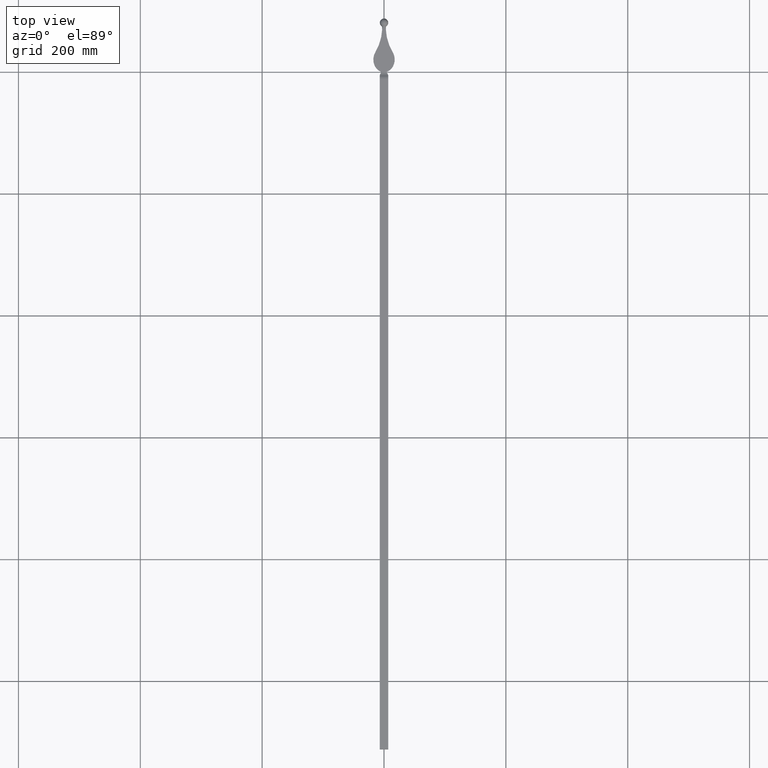
[diagram: clean part render]
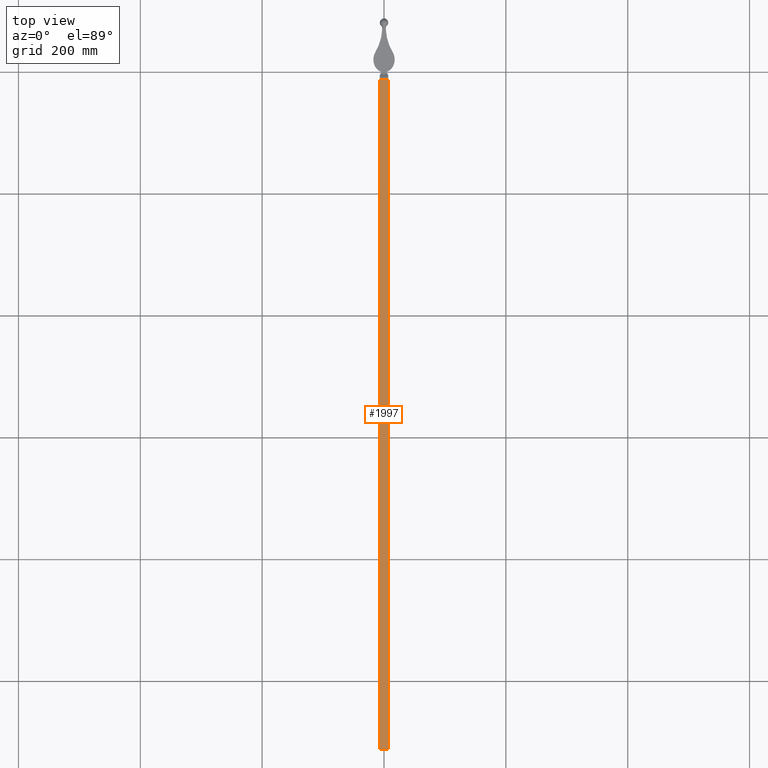
[diagram: same view with one face highlighted and labeled with its STEP entity id]
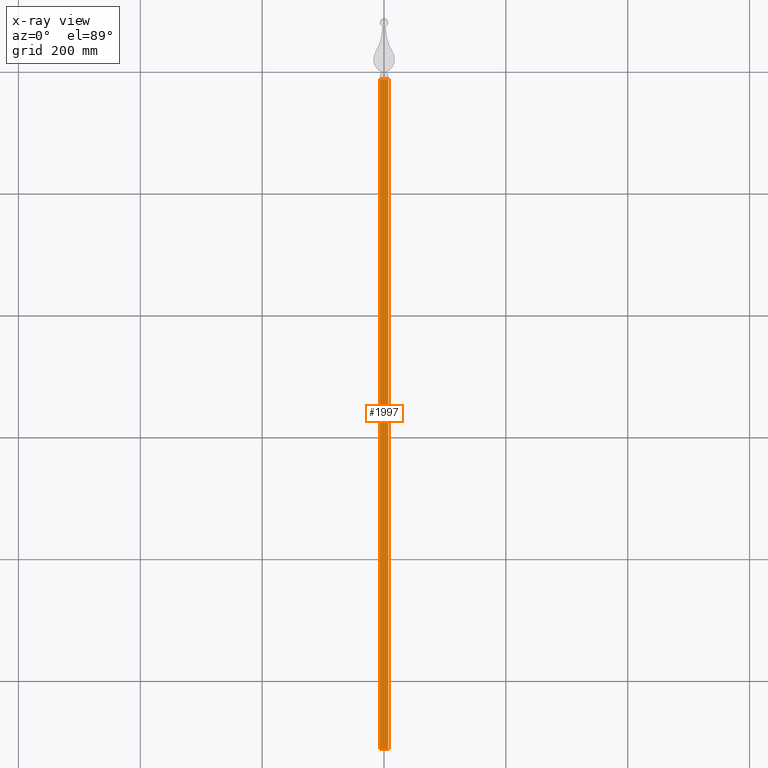
[diagram: x-ray of the same camera — body ghosted, the highlighted face saturated]
A machine part, top view. The second image highlights one B-rep face of the part: STEP entity #1997.
The next image is the same camera in x-ray: the body ghosted, the highlighted face saturated — about 0% of this face is hidden behind the body in this view.
In plain terms, the highlighted planar face has unit normal (0, 0, -1).
Its self-contained STEP definition (entity closure, byte-faithful):
#10 = VERTEX_POINT ( 'NONE', #12360 ) ;
#88 = EDGE_LOOP ( 'NONE', ( #8940, #3910, #2783, #8850 ) ) ;
#349 = LINE ( 'NONE', #6815, #1145 ) ;
#392 = VERTEX_POINT ( 'NONE', #10069 ) ;
#1086 = EDGE_CURVE ( 'NONE', #392, #6298, #6046, .T. ) ;
#1145 = VECTOR ( 'NONE', #10097, 1000.000000000000000 ) ;
#1716 = CARTESIAN_POINT ( 'NONE',  ( 7.000000000000001776, -1112.000000000000000, 6.999999999999998224 ) ) ;
#1997 = ADVANCED_FACE ( 'NONE', ( #10297 ), #11672, .F. ) ;
#2317 = LINE ( 'NONE', #4220, #7370 ) ;
#2696 = CARTESIAN_POINT ( 'NONE',  ( -7.000000000000001776, -1112.000000000000000, 6.999999999999998224 ) ) ;
#2783 = ORIENTED_EDGE ( 'NONE', *, *, #7693, .F. ) ;
#3133 = CARTESIAN_POINT ( 'NONE',  ( -7.000000000000001776, -1112.000000000000000, 6.999999999999998224 ) ) ;
#3910 = ORIENTED_EDGE ( 'NONE', *, *, #1086, .F. ) ;
#3979 = EDGE_CURVE ( 'NONE', #10, #10372, #349, .T. ) ;
#4220 = CARTESIAN_POINT ( 'NONE',  ( -7.000000000000001776, -1112.000000000000000, 6.999999999999998224 ) ) ;
#4738 = DIRECTION ( 'NONE',  ( 0.000000000000000000, 0.000000000000000000, -1.000000000000000000 ) ) ;
#5392 = DIRECTION ( 'NONE',  ( 1.000000000000000000, -0.000000000000000000, -0.000000000000000000 ) ) ;
#5914 = LINE ( 'NONE', #1716, #6235 ) ;
#6046 = LINE ( 'NONE', #10245, #11890 ) ;
#6235 = VECTOR ( 'NONE', #10774, 1000.000000000000000 ) ;
#6298 = VERTEX_POINT ( 'NONE', #7451 ) ;
#6383 = EDGE_CURVE ( 'NONE', #10, #6298, #5914, .T. ) ;
#6652 = DIRECTION ( 'NONE',  ( -1.000000000000000000, 0.000000000000000000, -0.000000000000000000 ) ) ;
#6815 = CARTESIAN_POINT ( 'NONE',  ( -7.000000000000001776, -1112.000000000000000, 6.999999999999998224 ) ) ;
#7370 = VECTOR ( 'NONE', #12121, 1000.000000000000000 ) ;
#7451 = CARTESIAN_POINT ( 'NONE',  ( 7.000000000000002665, -11.90588089979065956, 6.999999999999999112 ) ) ;
#7693 = EDGE_CURVE ( 'NONE', #10372, #392, #2317, .T. ) ;
#8850 = ORIENTED_EDGE ( 'NONE', *, *, #3979, .F. ) ;
#8940 = ORIENTED_EDGE ( 'NONE', *, *, #6383, .T. ) ;
#10069 = CARTESIAN_POINT ( 'NONE',  ( -7.000000000000002665, -11.90588089979065956, 6.999999999999999112 ) ) ;
#10097 = DIRECTION ( 'NONE',  ( -1.000000000000000000, -0.000000000000000000, -0.000000000000000000 ) ) ;
#10245 = CARTESIAN_POINT ( 'NONE',  ( -17.50002500000000083, -11.90588089979065956, 6.999999999999999112 ) ) ;
#10297 = FACE_OUTER_BOUND ( 'NONE', #88, .T. ) ;
#10372 = VERTEX_POINT ( 'NONE', #3133 ) ;
#10774 = DIRECTION ( 'NONE',  ( -0.000000000000000000, 1.000000000000000000, -0.000000000000000000 ) ) ;
#11672 = PLANE ( 'NONE',  #12312 ) ;
#11890 = VECTOR ( 'NONE', #5392, 1000.000000000000000 ) ;
#12121 = DIRECTION ( 'NONE',  ( -0.000000000000000000, 1.000000000000000000, -0.000000000000000000 ) ) ;
#12312 = AXIS2_PLACEMENT_3D ( 'NONE', #2696, #4738, #6652 ) ;
#12360 = CARTESIAN_POINT ( 'NONE',  ( 7.000000000000001776, -1112.000000000000000, 6.999999999999998224 ) ) ;